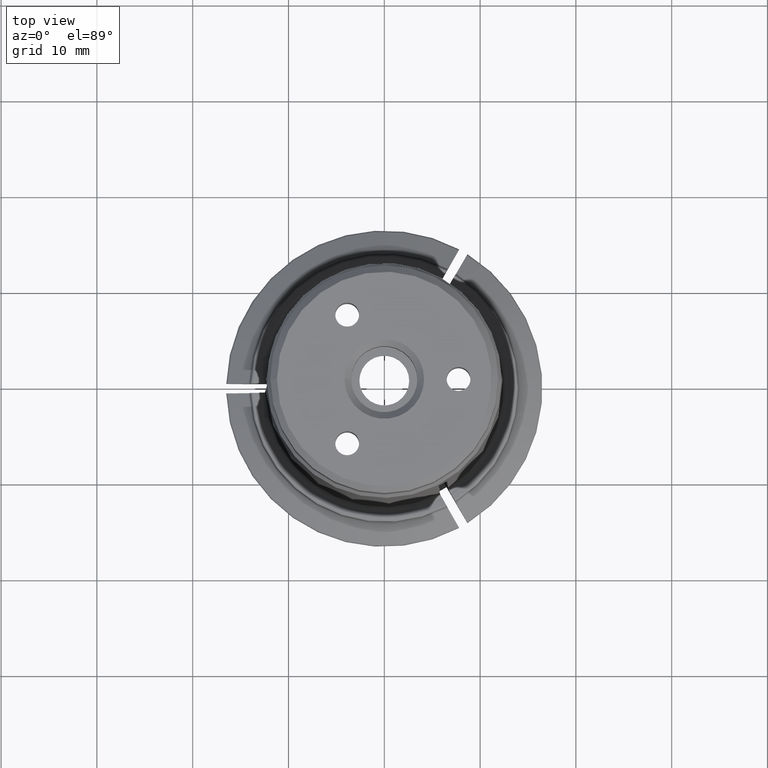
[diagram: clean part render]
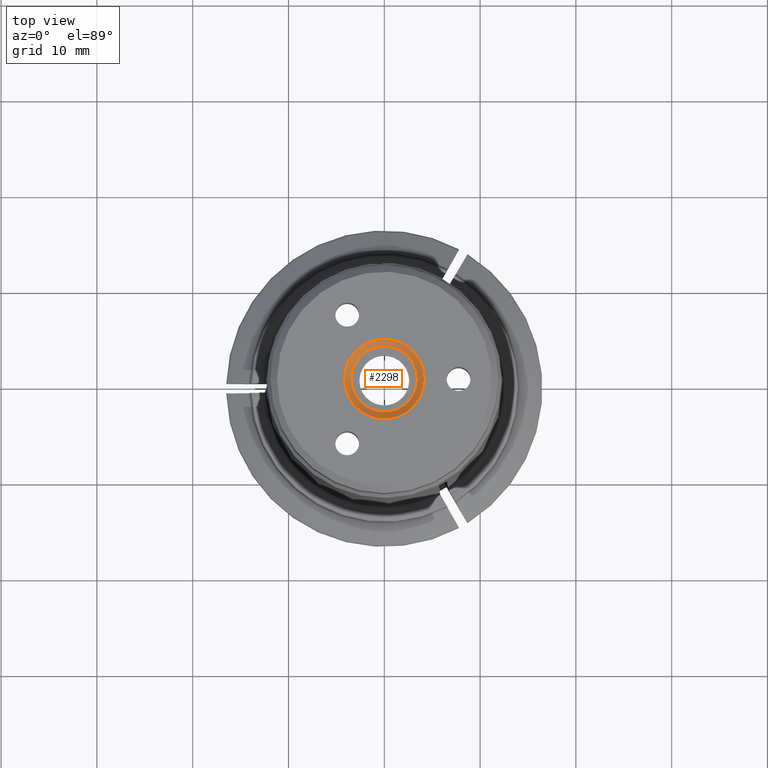
[diagram: same view with one face highlighted and labeled with its STEP entity id]
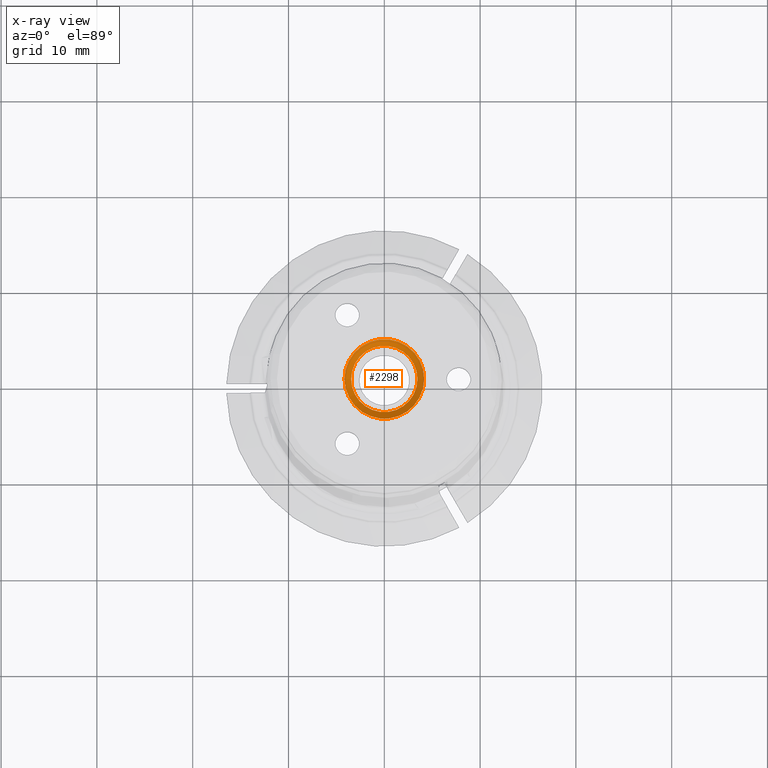
[diagram: x-ray of the same camera — body ghosted, the highlighted face saturated]
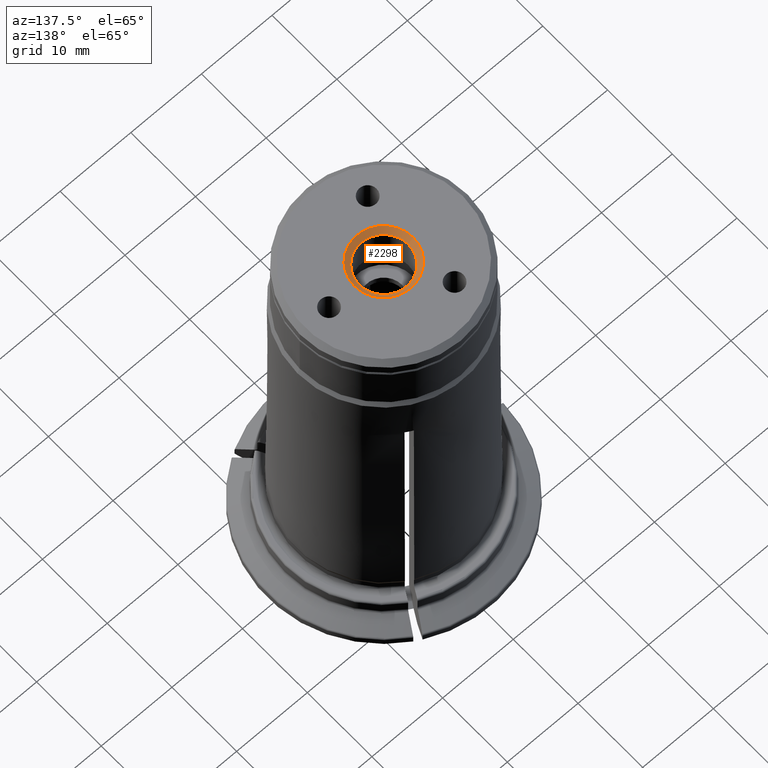
[diagram: same view with one face highlighted and labeled with its STEP entity id]
A machine part, top view. The second image highlights one B-rep face of the part: STEP entity #2298.
The next image is the same camera in x-ray: the body ghosted, the highlighted face saturated — about 0% of this face is hidden behind the body in this view.
A second angle (auxiliary view) of the same face is appended — the face is thin or edge-on in the first view.
In plain terms, the highlighted conical surface has half-angle 45 deg.
Its self-contained STEP definition (entity closure, byte-faithful):
#239=CONICAL_SURFACE('',#2415,3.4585,0.785398163397449);
#270=CIRCLE('',#2416,3.4585);
#271=CIRCLE('',#2417,4.1585);
#396=ORIENTED_EDGE('',*,*,#886,.T.);
#397=ORIENTED_EDGE('',*,*,#887,.F.);
#886=EDGE_CURVE('',#1131,#1131,#270,.T.);
#887=EDGE_CURVE('',#1132,#1132,#271,.T.);
#1131=VERTEX_POINT('',#3240);
#1132=VERTEX_POINT('',#3242);
#1332=EDGE_LOOP('',(#396));
#1333=EDGE_LOOP('',(#397));
#1470=FACE_BOUND('',#1332,.T.);
#1471=FACE_BOUND('',#1333,.T.);
#2298=ADVANCED_FACE('',(#1470,#1471),#239,.F.);
#2415=AXIS2_PLACEMENT_3D('',#3238,#2655,#2656);
#2416=AXIS2_PLACEMENT_3D('',#3239,#2657,#2658);
#2417=AXIS2_PLACEMENT_3D('',#3241,#2659,#2660);
#2655=DIRECTION('',(0.,0.,1.));
#2656=DIRECTION('',(1.,0.,0.));
#2657=DIRECTION('',(0.,0.,-1.));
#2658=DIRECTION('',(-1.,0.,0.));
#2659=DIRECTION('',(0.,0.,-1.));
#2660=DIRECTION('',(-1.,0.,0.));
#3238=CARTESIAN_POINT('',(0.,0.,59.8));
#3239=CARTESIAN_POINT('',(0.,0.,59.8));
#3240=CARTESIAN_POINT('',(-3.4585,0.,59.8));
#3241=CARTESIAN_POINT('',(0.,0.,60.5));
#3242=CARTESIAN_POINT('',(-4.1585,0.,60.5));